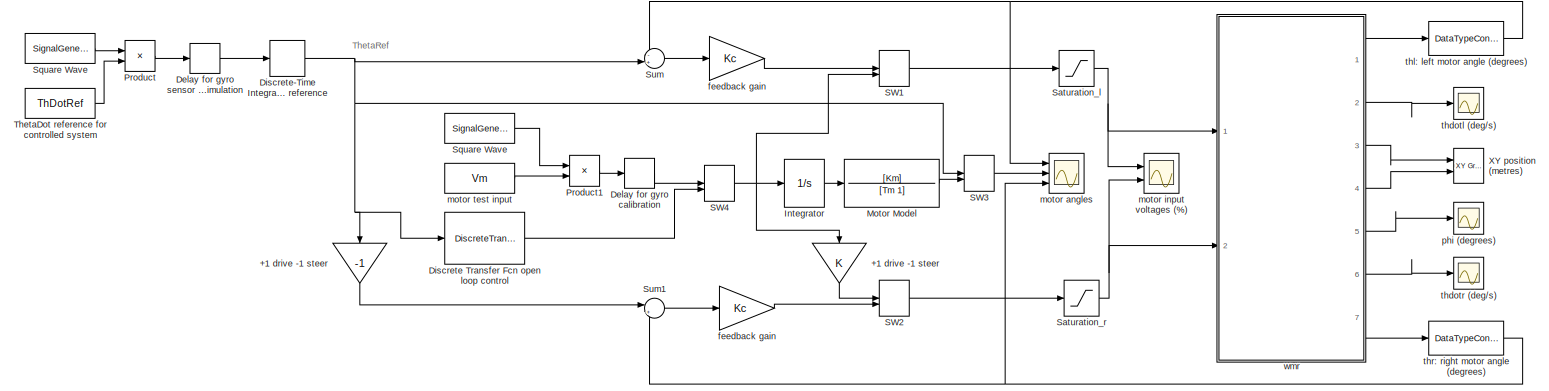
[diagram: root canvas - part 1/1, most of the canvas]
MODEL slx_f5991439a497
KIND model
CONFIG AbsTol = auto
CONFIG EnableMultiTasking = off
CONFIG FixedStep = auto
CONFIG MaxStep = auto
CONFIG MinStep = auto
CONFIG RelTol = 1e-3
CONFIG SampleTimeConstraint = Unconstrained
CONFIG Solver = VariableStepAuto
CONFIG SolverName = VariableStepAuto
CONFIG StartTime = 0.0
CONFIG StopTime = 60
BLOCK [Gain] +1 drive -1 steer
  Gain = -1
  OutDataTypeStr = Inherit: Inherit via internal rule
  ParamDataTypeStr = Inherit: Inherit via internal rule
  SaturateOnIntegerOverflow = off
BLOCK [Gain] +1 drive -1 steer 
  OutDataTypeStr = Inherit: Inherit via internal rule
  ParamDataTypeStr = Inherit: Inherit via internal rule
  SaturateOnIntegerOverflow = off
BLOCK [TransportDelay] Delay for gyro calibration
  DelayTime = 2
  FixedBuffer = on
  Ports = [1, 1]
BLOCK [TransportDelay] Delay for gyro sensor callibration at start of simulation 
  DelayTime = 2
  FixedBuffer = on
  Ports = [1, 1]
BLOCK [DiscreteTransferFcn] Discrete Transfer Fcn open loop control
  Denominator = COLden
  InputPortMap = u0
  Numerator = COLnum
  Ports = [1, 1]
  SampleTime = Ts
BLOCK [DiscreteIntegrator] Discrete-Time Integrator to convert ThetaDot reference to a Theta reference
  ICPrevOutput = DiscIntNeverNeededParam
  ICPrevScaledInput = DiscIntNeverNeededParam
  InitialConditionSetting = Auto
  Ports = [1, 1]
  SampleTime = Ts
BLOCK [Integrator] Integrator
  Ports = [1, 1]
BLOCK [TransferFcn] Motor Model
  Denominator = [Tm 1]
  Numerator = [Km]
BLOCK [Product] Product
  InputSameDT = off
  OutDataTypeStr = Inherit: Inherit via internal rule
  Ports = [2, 1]
  RndMeth = Floor
  SaturateOnIntegerOverflow = off
BLOCK [Product] Product1
  InputSameDT = off
  OutDataTypeStr = Inherit: Inherit via internal rule
  Ports = [2, 1]
  RndMeth = Floor
  SaturateOnIntegerOverflow = off
BLOCK [ManualSwitch] SW1
BLOCK [ManualSwitch] SW2
  CurrentSetting = 0
BLOCK [ManualSwitch] SW3
BLOCK [ManualSwitch] SW4
  CurrentSetting = 0
BLOCK [Saturate] Saturation_l
  InputPortMap = u0
  LowerLimit = -100
  Ports = [1, 1]
  UpperLimit = 100
BLOCK [Saturate] Saturation_r 
  InputPortMap = u0
  LowerLimit = -100
  Ports = [1, 1]
  UpperLimit = 100
BLOCK [SignalGenerator] Square Wave
  Frequency = SqWaveFreq
  Ports = [0, 1]
  WaveForm = square
BLOCK [SignalGenerator] Square Wave 
  Frequency = SqWaveFreq
  Ports = [0, 1]
  WaveForm = square
BLOCK [Sum] Sum
  IconShape = round
  InputSameDT = off
  Inputs = -+|
  OutDataTypeStr = Inherit: Inherit via internal rule
  Ports = [2, 1]
  SaturateOnIntegerOverflow = off
BLOCK [Sum] Sum1
  IconShape = round
  InputSameDT = off
  Inputs = |+-
  OutDataTypeStr = Inherit: Inherit via internal rule
  Ports = [2, 1]
  SaturateOnIntegerOverflow = off
BLOCK [Constant] ThetaDot reference for controlled system
  Value = ThDotRef
BLOCK [Reference] XY position (metres)  REF=simulink/Sinks/XY Graph
  Ports = [2]
  SourceBlock = simulink/Sinks/XY Graph
  SourceProductBaseCode = SL
  SourceProductName = Simulink
  SourceType = XY scope.
BLOCK [Gain] feedback gain
  Gain = Kc
  OutDataTypeStr = Inherit: Inherit via internal rule
  ParamDataTypeStr = Inherit: Inherit via internal rule
  SaturateOnIntegerOverflow = off
BLOCK [Gain] feedback gain 
  Gain = Kc
  OutDataTypeStr = Inherit: Inherit via internal rule
  ParamDataTypeStr = Inherit: Inherit via internal rule
  SaturateOnIntegerOverflow = off
BLOCK [Scope] motor angles
  Floating = off
  NumInputPorts = 3
  Ports = [3]
  ScopeSpecificationString = Simulink.scopes.TimeScopeBlockCfg('CurrentConfiguration', extmgr.ConfigurationSet(extmgr.Configuration('Core','General UI',true,'FigureColor',[1 1 1]),extmgr.Configuration('Core','Source UI',true),extmgr.Configuration('Sources','WiredSimulink',true,'DataLoggingVariableName','ScopeData1'),extmgr.Configuration('Visuals','Time Domain',true,'PlotType','Line','SerializedDisplays',{struct('MinYLimReal',...<+1910ch>
BLOCK [Scope] motor input voltages (%) 
  Floating = off
  NumInputPorts = 2
  Ports = [2]
  ScopeSpecificationString = Simulink.scopes.TimeScopeBlockCfg('CurrentConfiguration', extmgr.ConfigurationSet(extmgr.Configuration('Core','General UI',true,'FigureColor',[1 1 1]),extmgr.Configuration('Core','Source UI',true),extmgr.Configuration('Sources','WiredSimulink',true,'DataLoggingVariableName','ScopeData2'),extmgr.Configuration('Visuals','Time Domain',true,'SerializedDisplays',{struct('MinYLimReal','-123.14579','MaxY...<+1823ch>
BLOCK [Constant] motor test input
  Value = Vm
BLOCK [Scope] phi (degrees)
  Floating = off
  NumInputPorts = 1
  Ports = [1]
  ScopeSpecificationString = Simulink.scopes.TimeScopeBlockCfg('CurrentConfiguration', extmgr.ConfigurationSet(extmgr.Configuration('Core','General UI',true,'FigureColor',[1 1 1]),extmgr.Configuration('Core','Source UI',true),extmgr.Configuration('Sources','WiredSimulink',true,'DataLoggingVariableName','ScopeData3'),extmgr.Configuration('Visuals','Time Domain',true,'SerializedDisplays',{struct('MinYLimReal','-16.41202','MaxYL...<+1570ch>
BLOCK [Scope] thdotl (deg//s)
  Floating = off
  NumInputPorts = 1
  Ports = [1]
  ScopeSpecificationString = Simulink.scopes.TimeScopeBlockCfg('CurrentConfiguration', extmgr.ConfigurationSet(extmgr.Configuration('Core','General UI',true),extmgr.Configuration('Core','Source UI',true),extmgr.Configuration('Sources','WiredSimulink',true,'DataLoggingVariableName','ScopeData4'),extmgr.Configuration('Visuals','Time Domain',true,'SerializedDisplays',{struct('MinYLimReal','-974.49939','MaxYLimReal','974.13924','...<+1452ch>
BLOCK [Scope] thdotr (deg//s)
  Floating = off
  NumInputPorts = 1
  Ports = [1]
  ScopeSpecificationString = Simulink.scopes.TimeScopeBlockCfg('CurrentConfiguration', extmgr.ConfigurationSet(extmgr.Configuration('Core','General UI',true),extmgr.Configuration('Core','Source UI',true),extmgr.Configuration('Sources','WiredSimulink',true),extmgr.Configuration('Visuals','Time Domain',true,'SerializedDisplays',{struct('MinYLimReal','-270.44687','MaxYLimReal','259.687','YLabelReal','','MinYLimMag',' 0.00000','M...<+1336ch>
BLOCK [DataTypeConversion] thl: left motor angle (degrees)
  OutDataTypeStr = double
  RndMeth = Floor
  SaturateOnIntegerOverflow = off
BLOCK [DataTypeConversion] thr: right motor angle (degrees)
  OutDataTypeStr = double
  RndMeth = Floor
  SaturateOnIntegerOverflow = off
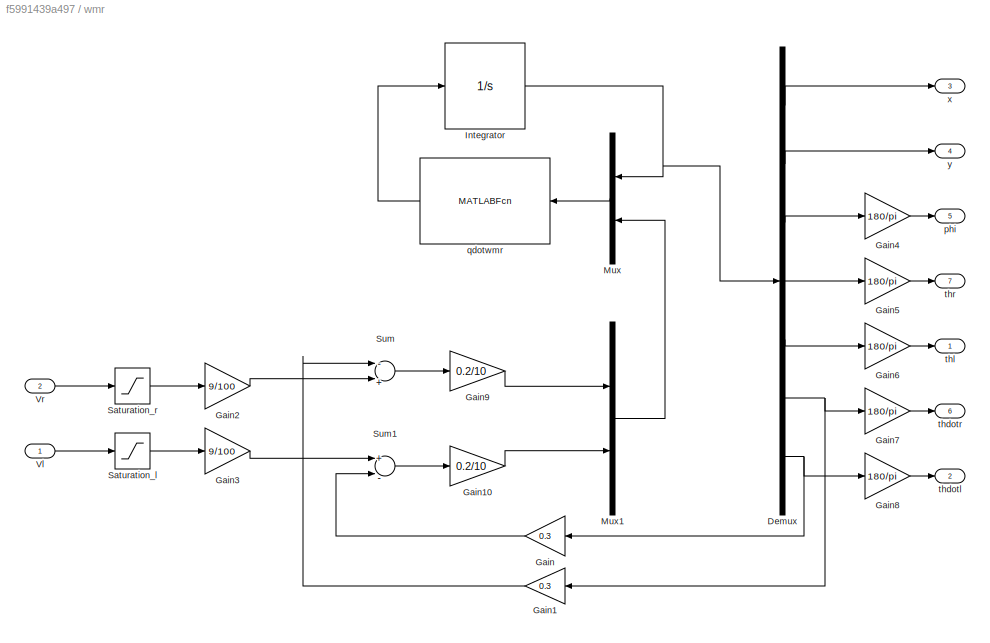
BLOCK [SubSystem] wmr 
  Ports = [2, 7]
  RequestExecContextInheritance = off
BLOCK [Demux] wmr /Demux
  DisplayOption = bar
  Outputs = 7
  Ports = [1, 7]
BLOCK [Gain] wmr /Gain
  Gain = 0.3
  OutDataTypeStr = Inherit: Inherit via internal rule
  ParamDataTypeStr = Inherit: Inherit via internal rule
  SaturateOnIntegerOverflow = off
BLOCK [Gain] wmr /Gain1
  Gain = 0.3
  OutDataTypeStr = Inherit: Inherit via internal rule
  ParamDataTypeStr = Inherit: Inherit via internal rule
  SaturateOnIntegerOverflow = off
BLOCK [Gain] wmr /Gain10
  Gain = 0.2/10
  OutDataTypeStr = Inherit: Inherit via internal rule
  ParamDataTypeStr = Inherit: Inherit via internal rule
  SaturateOnIntegerOverflow = off
BLOCK [Gain] wmr /Gain2
  Gain = 9/100
  OutDataTypeStr = Inherit: Inherit via internal rule
  ParamDataTypeStr = Inherit: Inherit via internal rule
  SaturateOnIntegerOverflow = off
BLOCK [Gain] wmr /Gain3
  Gain = 9/100
  OutDataTypeStr = Inherit: Inherit via internal rule
  ParamDataTypeStr = Inherit: Inherit via internal rule
  SaturateOnIntegerOverflow = off
BLOCK [Gain] wmr /Gain4
  Gain = 180/pi
  OutDataTypeStr = Inherit: Inherit via internal rule
  ParamDataTypeStr = Inherit: Inherit via internal rule
  SaturateOnIntegerOverflow = off
BLOCK [Gain] wmr /Gain5
  Gain = 180/pi
  OutDataTypeStr = Inherit: Inherit via internal rule
  ParamDataTypeStr = Inherit: Inherit via internal rule
  SaturateOnIntegerOverflow = off
BLOCK [Gain] wmr /Gain6
  Gain = 180/pi
  OutDataTypeStr = Inherit: Inherit via internal rule
  ParamDataTypeStr = Inherit: Inherit via internal rule
  SaturateOnIntegerOverflow = off
BLOCK [Gain] wmr /Gain7
  Gain = 180/pi
  OutDataTypeStr = Inherit: Inherit via internal rule
  ParamDataTypeStr = Inherit: Inherit via internal rule
  SaturateOnIntegerOverflow = off
BLOCK [Gain] wmr /Gain8
  Gain = 180/pi
  OutDataTypeStr = Inherit: Inherit via internal rule
  ParamDataTypeStr = Inherit: Inherit via internal rule
  SaturateOnIntegerOverflow = off
BLOCK [Gain] wmr /Gain9
  Gain = 0.2/10
  OutDataTypeStr = Inherit: Inherit via internal rule
  ParamDataTypeStr = Inherit: Inherit via internal rule
  SaturateOnIntegerOverflow = off
BLOCK [Integrator] wmr /Integrator
  InitialCondition = [0; 0; 0; 0; 0; 0; 0]
  Ports = [1, 1]
BLOCK [Mux] wmr /Mux
  DisplayOption = bar
  Inputs = 2
  Ports = [2, 1]
BLOCK [Mux] wmr /Mux1
  DisplayOption = bar
  Inputs = 2
  Ports = [2, 1]
BLOCK [Saturate] wmr /Saturation_l
  InputPortMap = u0
  LowerLimit = -100
  Ports = [1, 1]
  UpperLimit = 100
BLOCK [Saturate] wmr /Saturation_r 
  InputPortMap = u0
  LowerLimit = -100
  Ports = [1, 1]
  UpperLimit = 100
BLOCK [Sum] wmr /Sum
  InputSameDT = off
  Inputs = -|+
  OutDataTypeStr = Inherit: Inherit via internal rule
  Ports = [2, 1]
  SaturateOnIntegerOverflow = off
BLOCK [Sum] wmr /Sum1
  InputSameDT = off
  Inputs = +|-
  OutDataTypeStr = Inherit: Inherit via internal rule
  Ports = [2, 1]
  SaturateOnIntegerOverflow = off
BLOCK [Inport] wmr /Vl
  IconDisplay = Port number
BLOCK [Inport] wmr /Vr
  IconDisplay = Port number
  Port = 2
BLOCK [Outport] wmr /phi
  IconDisplay = Port number
  Port = 5
BLOCK [MATLABFcn] wmr /qdotwmr
  MATLABFcn = qdotwmr(u)
  Ports = [1, 1]
BLOCK [Outport] wmr /thdotl
  IconDisplay = Port number
  Port = 2
BLOCK [Outport] wmr /thdotr
  IconDisplay = Port number
  Port = 6
BLOCK [Outport] wmr /thl
  IconDisplay = Port number
BLOCK [Outport] wmr /thr
  IconDisplay = Port number
  Port = 7
BLOCK [Outport] wmr /x
  IconDisplay = Port number
  Port = 3
BLOCK [Outport] wmr /y
  IconDisplay = Port number
  Port = 4
ANNOTATION (root): ThetaRef
LINE +1 drive -1 steer :1 -> SW2:1
LINE +1 drive -1 steer:1 -> Sum1:1
LINE Delay for gyro calibration:1 -> SW4:1
LINE Delay for gyro sensor callibration at start of simulation :1 -> Discrete-Time Integrator to convert ThetaDot reference to a Theta reference:1
LINE Discrete Transfer Fcn open loop control:1 -> SW4:2
NET Discrete-Time Integrator to convert ThetaDot reference to a Theta reference:1 -> +1 drive -1 steer:1, Discrete Transfer Fcn open loop control:1, SW3:1, Sum:2
LINE Integrator:1 -> Motor Model:1
LINE Motor Model:1 -> SW3:2
LINE Product1:1 -> Delay for gyro calibration:1
LINE Product:1 -> Delay for gyro sensor callibration at start of simulation :1
LINE SW1:1 -> Saturation_l:1
LINE SW2:1 -> Saturation_r :1
LINE SW3:1 -> motor angles:2
NET SW4:1 -> +1 drive -1 steer :1, Integrator:1, SW1:2
NET Saturation_l:1 -> motor input voltages (%) :1, wmr :1
NET Saturation_r :1 -> motor input voltages (%) :2, wmr :2
LINE Square Wave :1 -> Product1:1
LINE Square Wave:1 -> Product:1
LINE Sum1:1 -> feedback gain :1
LINE Sum:1 -> feedback gain:1
LINE ThetaDot reference for controlled system:1 -> Product:2
LINE feedback gain :1 -> SW2:2
LINE feedback gain:1 -> SW1:1
LINE motor test input:1 -> Product1:2
NET thl: left motor angle (degrees):1 -> Sum:1, motor angles:1
NET thr: right motor angle (degrees):1 -> Sum1:2, motor angles:3
LINE wmr /Demux:1 -> wmr /x:1
LINE wmr /Demux:2 -> wmr /y:1
LINE wmr /Demux:3 -> wmr /Gain4:1
LINE wmr /Demux:4 -> wmr /Gain5:1
LINE wmr /Demux:5 -> wmr /Gain6:1
NET wmr /Demux:6 -> wmr /Gain1:1, wmr /Gain7:1
NET wmr /Demux:7 -> wmr /Gain8:1, wmr /Gain:1
LINE wmr /Gain10:1 -> wmr /Mux1:2
LINE wmr /Gain1:1 -> wmr /Sum:1
LINE wmr /Gain2:1 -> wmr /Sum:2
LINE wmr /Gain3:1 -> wmr /Sum1:1
LINE wmr /Gain4:1 -> wmr /phi:1
LINE wmr /Gain5:1 -> wmr /thr:1
LINE wmr /Gain6:1 -> wmr /thl:1
LINE wmr /Gain7:1 -> wmr /thdotr:1
LINE wmr /Gain8:1 -> wmr /thdotl:1
LINE wmr /Gain9:1 -> wmr /Mux1:1
LINE wmr /Gain:1 -> wmr /Sum1:2
NET wmr /Integrator:1 -> wmr /Demux:1, wmr /Mux:1
LINE wmr /Mux1:1 -> wmr /Mux:2
LINE wmr /Mux:1 -> wmr /qdotwmr:1
LINE wmr /Saturation_l:1 -> wmr /Gain3:1
LINE wmr /Saturation_r :1 -> wmr /Gain2:1
LINE wmr /Sum1:1 -> wmr /Gain10:1
LINE wmr /Sum:1 -> wmr /Gain9:1
LINE wmr /Vl:1 -> wmr /Saturation_l:1
LINE wmr /Vr:1 -> wmr /Saturation_r :1
LINE wmr /qdotwmr:1 -> wmr /Integrator:1
LINE wmr :1 -> thl: left motor angle (degrees):1
LINE wmr :2 -> thdotl (deg//s):1
LINE wmr :3 -> XY position (metres):1
LINE wmr :4 -> XY position (metres):2
LINE wmr :5 -> phi (degrees):1
LINE wmr :6 -> thdotr (deg//s):1
LINE wmr :7 -> thr: right motor angle (degrees):1
note: NET lines group one-source signal fan-out (src -> all destinations, sorted); 1:1 wires keep LINE
